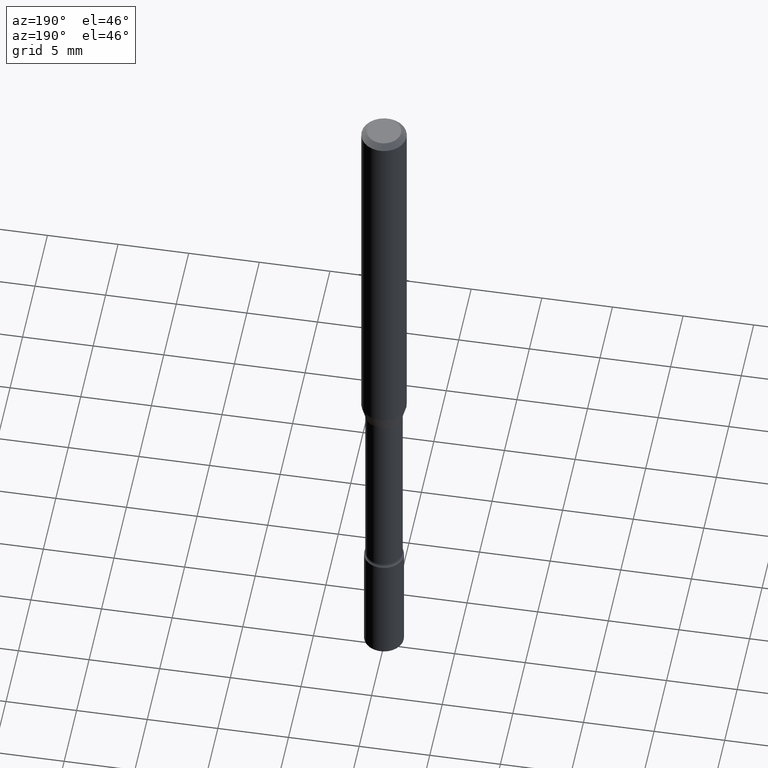
[diagram: clean part render]
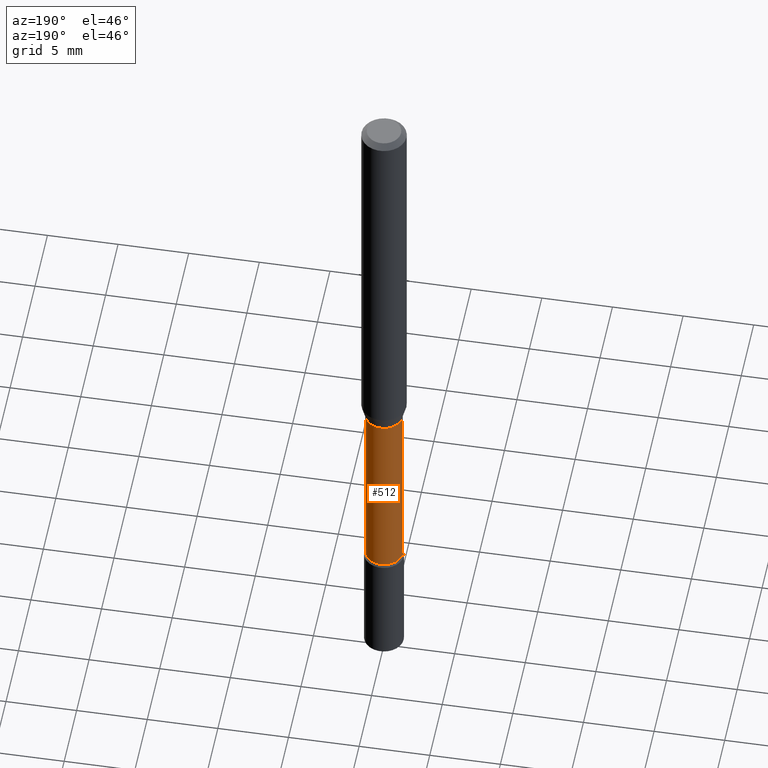
[diagram: same view with one face highlighted and labeled with its STEP entity id]
A machine part, auxiliary view. The second image highlights one B-rep face of the part: STEP entity #512.
In plain terms, the highlighted cylindrical surface (edge-blend (fillet) strip) has radius 1.3132 mm, axis along (-0, 0, 1).
Its self-contained STEP definition (entity closure, byte-faithful):
#1 = EDGE_CURVE ( 'NONE', #305, #97, #10, .T. ) ;
#7 = CYLINDRICAL_SURFACE ( 'NONE', #204, 0.05169999999999999596 ) ;
#10 = CIRCLE ( 'NONE', #494, 0.05169999999999999596 ) ;
#11 = CARTESIAN_POINT ( 'NONE',  ( 0.05169999999999999596, -4.278373203518779894E-15, -1.121974787463810852 ) ) ;
#60 = VECTOR ( 'NONE', #358, 39.37007874015748143 ) ;
#78 = LINE ( 'NONE', #311, #427 ) ;
#86 = DIRECTION ( 'NONE',  ( -2.445468806185136877E-29, 3.491481338843145188E-15, 1.000000000000000000 ) ) ;
#97 = VERTEX_POINT ( 'NONE', #255 ) ;
#117 = CARTESIAN_POINT ( 'NONE',  ( 0.05169999999999999596, -6.159019543879958449E-15, -1.660613307291702645 ) ) ;
#121 = LINE ( 'NONE', #520, #60 ) ;
#124 = ORIENTED_EDGE ( 'NONE', *, *, #130, .T. ) ;
#130 = EDGE_CURVE ( 'NONE', #97, #446, #78, .T. ) ;
#159 = DIRECTION ( 'NONE',  ( 1.000000000000000000, -6.982962677686266711E-15, 4.876176775795936353E-29 ) ) ;
#173 = VERTEX_POINT ( 'NONE', #11 ) ;
#180 = AXIS2_PLACEMENT_3D ( 'NONE', #386, #187, #228 ) ;
#187 = DIRECTION ( 'NONE',  ( -2.445468806185136597E-29, 3.491481338843145583E-15, 1.000000000000000000 ) ) ;
#204 = AXIS2_PLACEMENT_3D ( 'NONE', #444, #270, #159 ) ;
#211 = ORIENTED_EDGE ( 'NONE', *, *, #324, .F. ) ;
#213 = DIRECTION ( 'NONE',  ( 1.000000000000000000, -6.982962677686275388E-15, 0.000000000000000000 ) ) ;
#228 = DIRECTION ( 'NONE',  ( 1.000000000000000000, -6.982962677686265922E-15, 0.000000000000000000 ) ) ;
#255 = CARTESIAN_POINT ( 'NONE',  ( -0.05169999999999999596, -5.435312555127801674E-15, -1.660613307291702645 ) ) ;
#270 = DIRECTION ( 'NONE',  ( -2.445468806185136597E-29, 3.491481338843145583E-15, 1.000000000000000000 ) ) ;
#283 = EDGE_CURVE ( 'NONE', #305, #173, #121, .T. ) ;
#305 = VERTEX_POINT ( 'NONE', #117 ) ;
#311 = CARTESIAN_POINT ( 'NONE',  ( -0.05169999999999999596, 3.673505943879717674E-16, -2.543089441661786117E-30 ) ) ;
#313 = CARTESIAN_POINT ( 'NONE',  ( -0.05169999999999999596, -4.490326608875016858E-15, -1.121974787463810852 ) ) ;
#322 = ORIENTED_EDGE ( 'NONE', *, *, #283, .F. ) ;
#324 = EDGE_CURVE ( 'NONE', #173, #446, #414, .T. ) ;
#332 = ORIENTED_EDGE ( 'NONE', *, *, #1, .T. ) ;
#358 = DIRECTION ( 'NONE',  ( -2.445468806185136877E-29, 3.491481338843145188E-15, 1.000000000000000000 ) ) ;
#386 = CARTESIAN_POINT ( 'NONE',  ( 2.743754344068947711E-29, -3.917354033082399546E-15, -1.121974787463810852 ) ) ;
#390 = FACE_OUTER_BOUND ( 'NONE', #495, .T. ) ;
#414 = CIRCLE ( 'NONE', #180, 0.05169999999999999596 ) ;
#427 = VECTOR ( 'NONE', #86, 39.37007874015748143 ) ;
#444 = CARTESIAN_POINT ( 'NONE',  ( 0.000000000000000000, 0.000000000000000000, 0.000000000000000000 ) ) ;
#446 = VERTEX_POINT ( 'NONE', #313 ) ;
#467 = CARTESIAN_POINT ( 'NONE',  ( 4.060978042117791300E-29, -5.798000373443578100E-15, -1.660613307291702645 ) ) ;
#494 = AXIS2_PLACEMENT_3D ( 'NONE', #467, #514, #213 ) ;
#495 = EDGE_LOOP ( 'NONE', ( #332, #124, #211, #322 ) ) ;
#512 = ADVANCED_FACE ( 'NONE', ( #390 ), #7, .T. ) ;
#514 = DIRECTION ( 'NONE',  ( -2.445468806185136597E-29, 3.491481338843145583E-15, 1.000000000000000000 ) ) ;
#520 = CARTESIAN_POINT ( 'NONE',  ( 0.05169999999999999596, -3.610191704363799542E-16, 2.520983393086498937E-30 ) ) ;